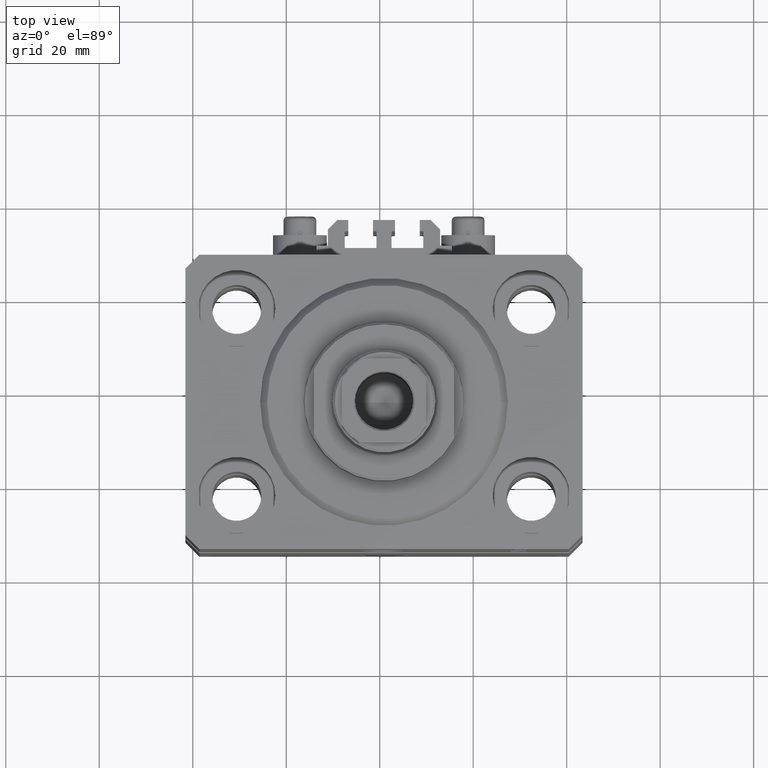
[diagram: clean part render]
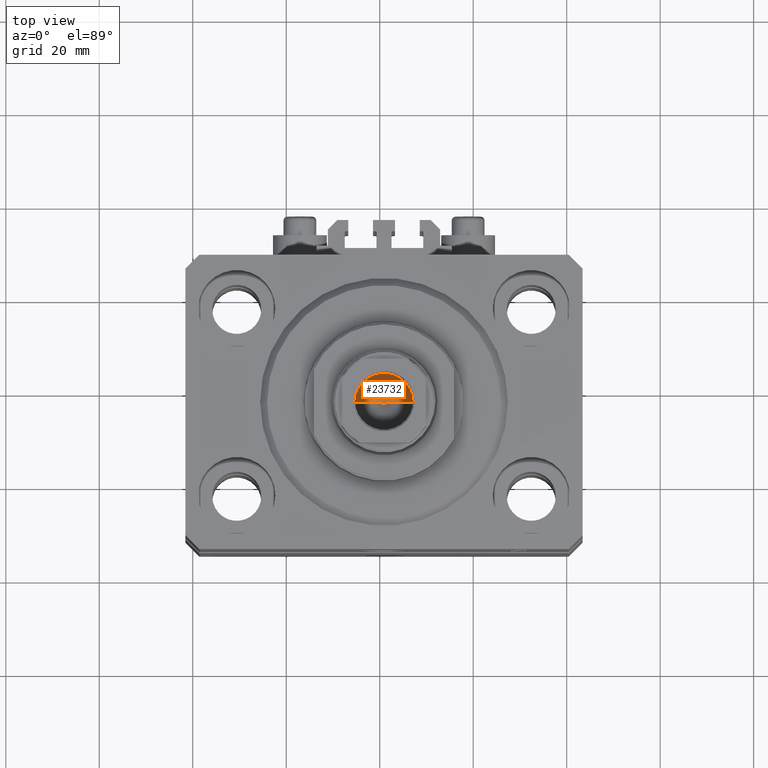
[diagram: same view with one face highlighted and labeled with its STEP entity id]
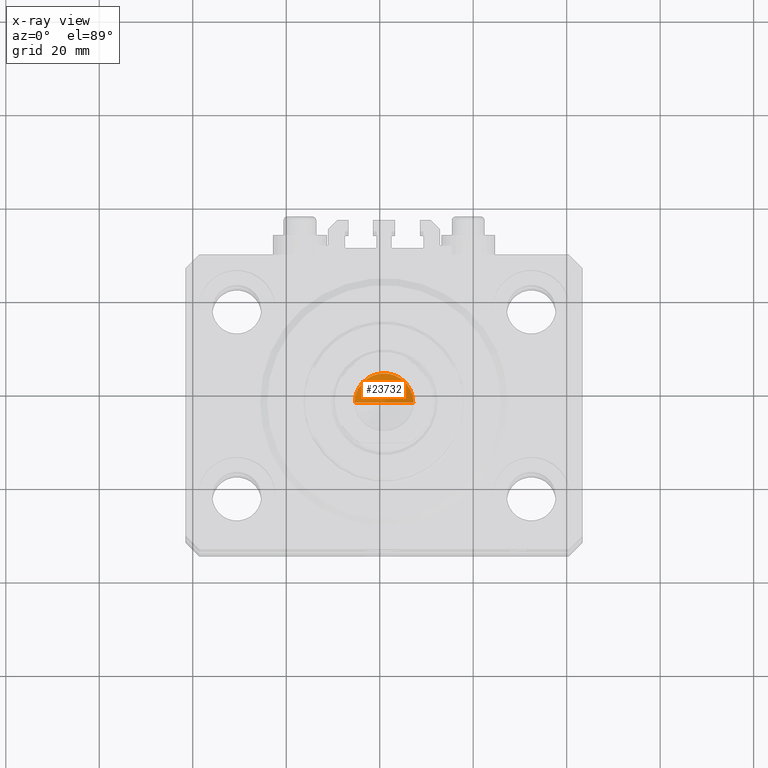
[diagram: x-ray of the same camera — body ghosted, the highlighted face saturated]
A machine part, top view. The second image highlights one B-rep face of the part: STEP entity #23732.
The next image is the same camera in x-ray: the body ghosted, the highlighted face saturated — about 0% of this face is hidden behind the body in this view.
In plain terms, the highlighted conical surface has half-angle 59 deg.
Its self-contained STEP definition (entity closure, byte-faithful):
#7809 = CARTESIAN_POINT ( 'NONE',  ( -6.249999999999993783, 7.654042494670949718E-16, 73.50000000000001421 ) ) ;
#9724 = CIRCLE ( 'NONE', #10502, 6.249999999999993783 ) ;
#10034 = AXIS2_PLACEMENT_3D ( 'NONE', #23191, #37863, #36923 ) ;
#10502 = AXIS2_PLACEMENT_3D ( 'NONE', #20899, #35593, #17275 ) ;
#11346 = VECTOR ( 'NONE', #12212, 1000.000000000000000 ) ;
#11845 = EDGE_CURVE ( 'NONE', #14392, #18591, #18959, .T. ) ;
#12212 = DIRECTION ( 'NONE',  ( -0.8571673007021115565, 1.049727191138617710E-16, 0.5150380749100554878 ) ) ;
#14392 = VERTEX_POINT ( 'NONE', #23257 ) ;
#17275 = DIRECTION ( 'NONE',  ( 1.000000000000000000, 0.000000000000000000, 0.000000000000000000 ) ) ;
#17430 = LINE ( 'NONE', #43193, #34301 ) ;
#17817 = CONICAL_SURFACE ( 'NONE', #10034, 6.249999999999993783, 1.029744258676652979 ) ;
#18591 = VERTEX_POINT ( 'NONE', #7809 ) ;
#18959 = LINE ( 'NONE', #30516, #11346 ) ;
#20899 = CARTESIAN_POINT ( 'NONE',  ( 0.000000000000000000, 0.000000000000000000, 73.50000000000001421 ) ) ;
#21298 = DIRECTION ( 'NONE',  ( 0.8571673007021115565, 0.000000000000000000, 0.5150380749100554878 ) ) ;
#23191 = CARTESIAN_POINT ( 'NONE',  ( 0.000000000000000000, 0.000000000000000000, 73.50000000000001421 ) ) ;
#23257 = CARTESIAN_POINT ( 'NONE',  ( -7.434177670704979810E-15, 0.000000000000000000, 69.74462113107774996 ) ) ;
#23732 = ADVANCED_FACE ( 'NONE', ( #40526 ), #17817, .F. ) ;
#25409 = ORIENTED_EDGE ( 'NONE', *, *, #39695, .T. ) ;
#26559 = VERTEX_POINT ( 'NONE', #35562 ) ;
#30516 = CARTESIAN_POINT ( 'NONE',  ( -6.249999999999993783, 7.654042494670949718E-16, 73.50000000000001421 ) ) ;
#34301 = VECTOR ( 'NONE', #21298, 1000.000000000000000 ) ;
#35562 = CARTESIAN_POINT ( 'NONE',  ( 6.249999999999993783, 0.000000000000000000, 73.50000000000001421 ) ) ;
#35593 = DIRECTION ( 'NONE',  ( -0.000000000000000000, -0.000000000000000000, 1.000000000000000000 ) ) ;
#36600 = ORIENTED_EDGE ( 'NONE', *, *, #11845, .F. ) ;
#36923 = DIRECTION ( 'NONE',  ( 1.000000000000000000, 0.000000000000000000, 0.000000000000000000 ) ) ;
#37863 = DIRECTION ( 'NONE',  ( -0.000000000000000000, -0.000000000000000000, 1.000000000000000000 ) ) ;
#39695 = EDGE_CURVE ( 'NONE', #14392, #26559, #17430, .T. ) ;
#40526 = FACE_OUTER_BOUND ( 'NONE', #47463, .T. ) ;
#41594 = EDGE_CURVE ( 'NONE', #26559, #18591, #9724, .T. ) ;
#43193 = CARTESIAN_POINT ( 'NONE',  ( 6.249999999999993783, 0.000000000000000000, 73.50000000000001421 ) ) ;
#47038 = ORIENTED_EDGE ( 'NONE', *, *, #41594, .T. ) ;
#47463 = EDGE_LOOP ( 'NONE', ( #36600, #25409, #47038 ) ) ;